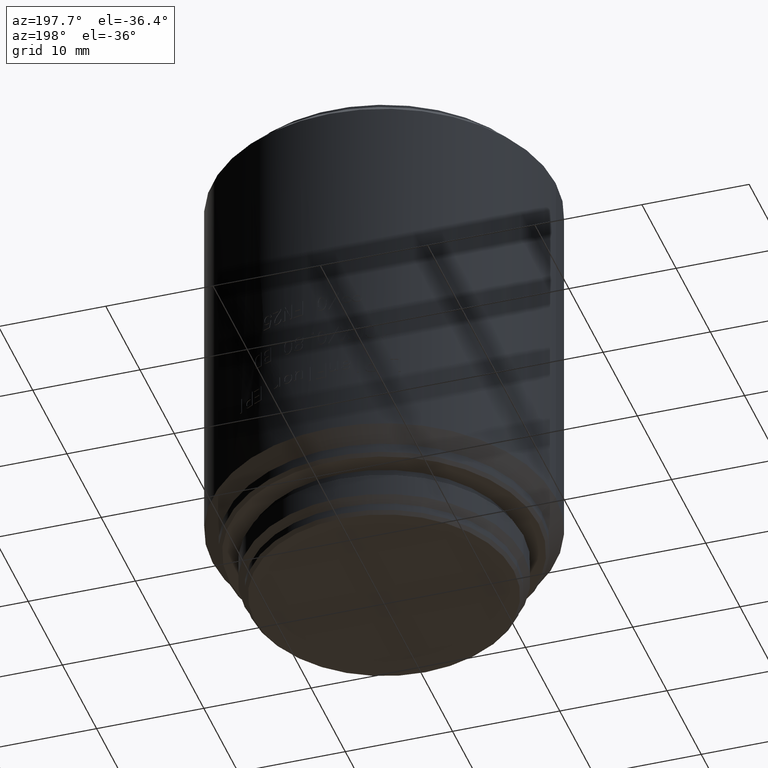
[diagram: clean part render]
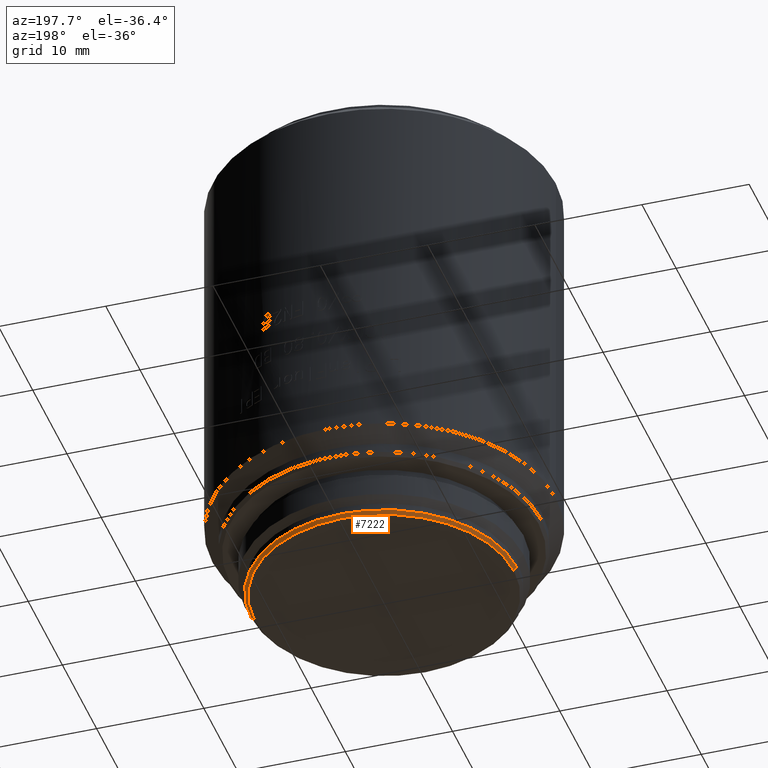
[diagram: same view with one face highlighted and labeled with its STEP entity id]
A machine part, auxiliary view. The second image highlights one B-rep face of the part: STEP entity #7222.
In plain terms, the highlighted conical surface has half-angle 45 deg.
Its self-contained STEP definition (entity closure, byte-faithful):
#837 = CARTESIAN_POINT ( 'NONE',  ( 0.000000000000000000, 0.000000000000000000, 0.000000000000000000 ) ) ;
#1107 = EDGE_CURVE ( 'NONE', #3892, #25276, #11800, .T. ) ;
#1337 = CARTESIAN_POINT ( 'NONE',  ( -12.40000000000000213, 1.518562030942718164E-15, 0.3000000000000119793 ) ) ;
#1830 = EDGE_CURVE ( 'NONE', #25276, #25470, #28824, .T. ) ;
#3892 = VERTEX_POINT ( 'NONE', #18249 ) ;
#4234 = VECTOR ( 'NONE', #7361, 1000.000000000000000 ) ;
#4674 = EDGE_CURVE ( 'NONE', #6136, #25470, #21764, .T. ) ;
#5192 = CIRCLE ( 'NONE', #21708, 12.09999999999999964 ) ;
#5210 = AXIS2_PLACEMENT_3D ( 'NONE', #837, #20942, #23610 ) ;
#5686 = CONICAL_SURFACE ( 'NONE', #5210, 12.09999999999999964, 0.7853981633974306265 ) ;
#6136 = VERTEX_POINT ( 'NONE', #14726 ) ;
#6877 = ORIENTED_EDGE ( 'NONE', *, *, #22962, .F. ) ;
#7222 = ADVANCED_FACE ( 'NONE', ( #23170 ), #5686, .T. ) ;
#7361 = DIRECTION ( 'NONE',  ( 0.7071067811865350272, 0.000000000000000000, 0.7071067811865600072 ) ) ;
#8603 = CARTESIAN_POINT ( 'NONE',  ( 0.000000000000000000, 0.000000000000000000, 0.000000000000000000 ) ) ;
#8605 = CARTESIAN_POINT ( 'NONE',  ( 0.000000000000000000, 0.000000000000000000, 0.3000000000000119793 ) ) ;
#9732 = ORIENTED_EDGE ( 'NONE', *, *, #1830, .F. ) ;
#10231 = CARTESIAN_POINT ( 'NONE',  ( -12.09999999999999964, 1.481822626968297304E-15, 0.000000000000000000 ) ) ;
#10382 = AXIS2_PLACEMENT_3D ( 'NONE', #8605, #20001, #26510 ) ;
#11800 = LINE ( 'NONE', #20973, #4234 ) ;
#13038 = ORIENTED_EDGE ( 'NONE', *, *, #4674, .T. ) ;
#14726 = CARTESIAN_POINT ( 'NONE',  ( -12.09999999999999964, 1.500192328955507734E-15, 0.000000000000000000 ) ) ;
#14942 = DIRECTION ( 'NONE',  ( -0.7071067811865350272, 8.659560562354780016E-17, 0.7071067811865600072 ) ) ;
#17634 = DIRECTION ( 'NONE',  ( 0.000000000000000000, 0.000000000000000000, -1.000000000000000000 ) ) ;
#18086 = DIRECTION ( 'NONE',  ( 1.000000000000000000, 0.000000000000000000, 0.000000000000000000 ) ) ;
#18249 = CARTESIAN_POINT ( 'NONE',  ( 12.09999999999999964, 0.000000000000000000, 0.000000000000000000 ) ) ;
#18724 = EDGE_LOOP ( 'NONE', ( #6877, #13038, #9732, #27562 ) ) ;
#18796 = CARTESIAN_POINT ( 'NONE',  ( 12.40000000000000213, 0.000000000000000000, 0.3000000000000119793 ) ) ;
#20001 = DIRECTION ( 'NONE',  ( 0.000000000000000000, 0.000000000000000000, 1.000000000000000000 ) ) ;
#20942 = DIRECTION ( 'NONE',  ( 0.000000000000000000, 0.000000000000000000, 1.000000000000000000 ) ) ;
#20973 = CARTESIAN_POINT ( 'NONE',  ( 12.09999999999999964, 0.000000000000000000, 0.000000000000000000 ) ) ;
#21708 = AXIS2_PLACEMENT_3D ( 'NONE', #8603, #17634, #18086 ) ;
#21764 = LINE ( 'NONE', #10231, #27391 ) ;
#22962 = EDGE_CURVE ( 'NONE', #6136, #3892, #5192, .T. ) ;
#23170 = FACE_OUTER_BOUND ( 'NONE', #18724, .T. ) ;
#23610 = DIRECTION ( 'NONE',  ( 1.000000000000000000, 0.000000000000000000, 0.000000000000000000 ) ) ;
#25276 = VERTEX_POINT ( 'NONE', #18796 ) ;
#25470 = VERTEX_POINT ( 'NONE', #1337 ) ;
#26510 = DIRECTION ( 'NONE',  ( 1.000000000000000000, 0.000000000000000000, 0.000000000000000000 ) ) ;
#27391 = VECTOR ( 'NONE', #14942, 1000.000000000000000 ) ;
#27562 = ORIENTED_EDGE ( 'NONE', *, *, #1107, .F. ) ;
#28824 = CIRCLE ( 'NONE', #10382, 12.40000000000000036 ) ;